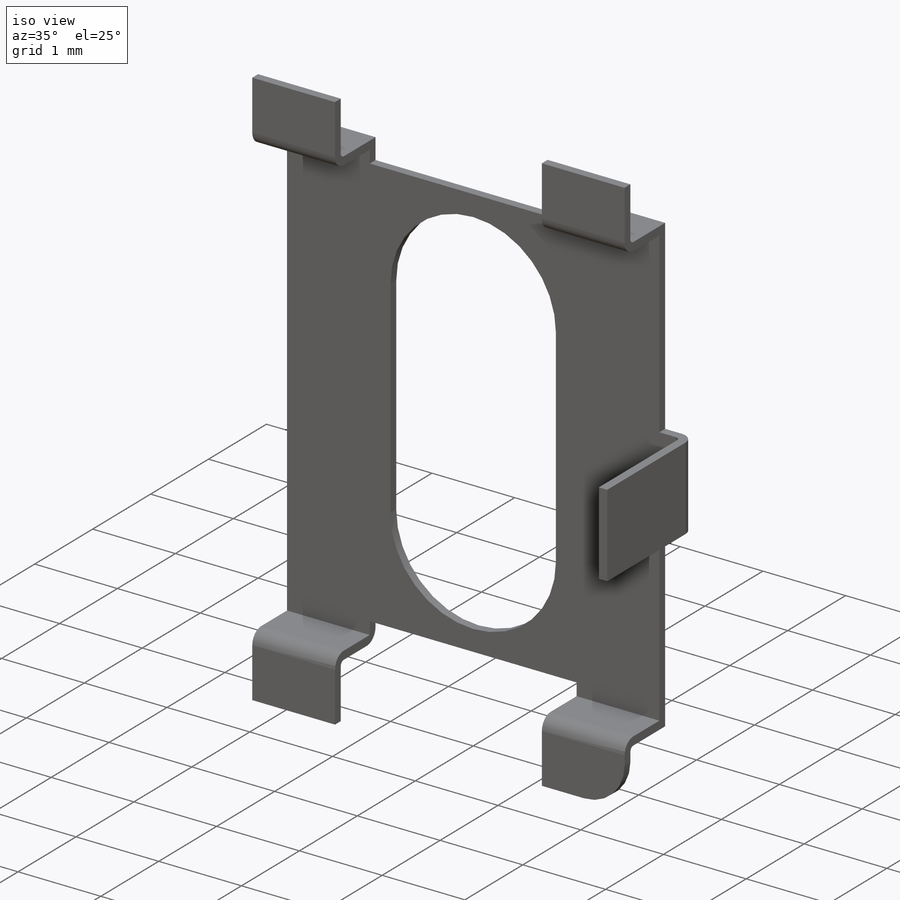
[diagram: iso view]
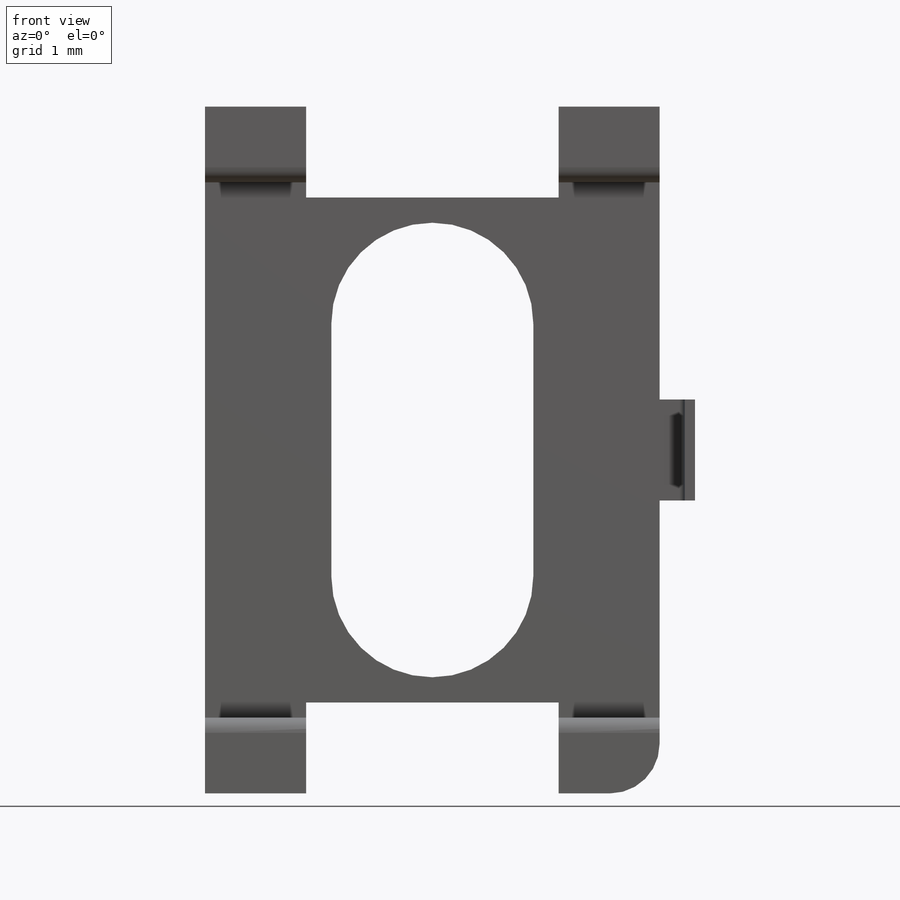
[diagram: front view]
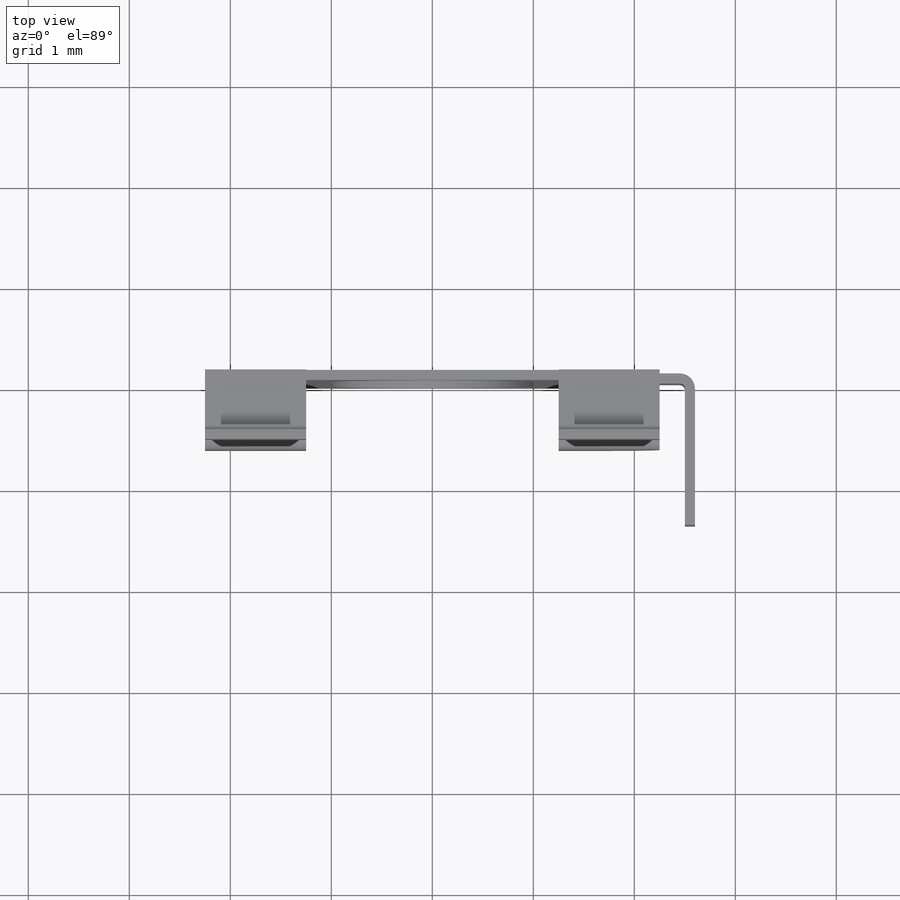
[diagram: top view]
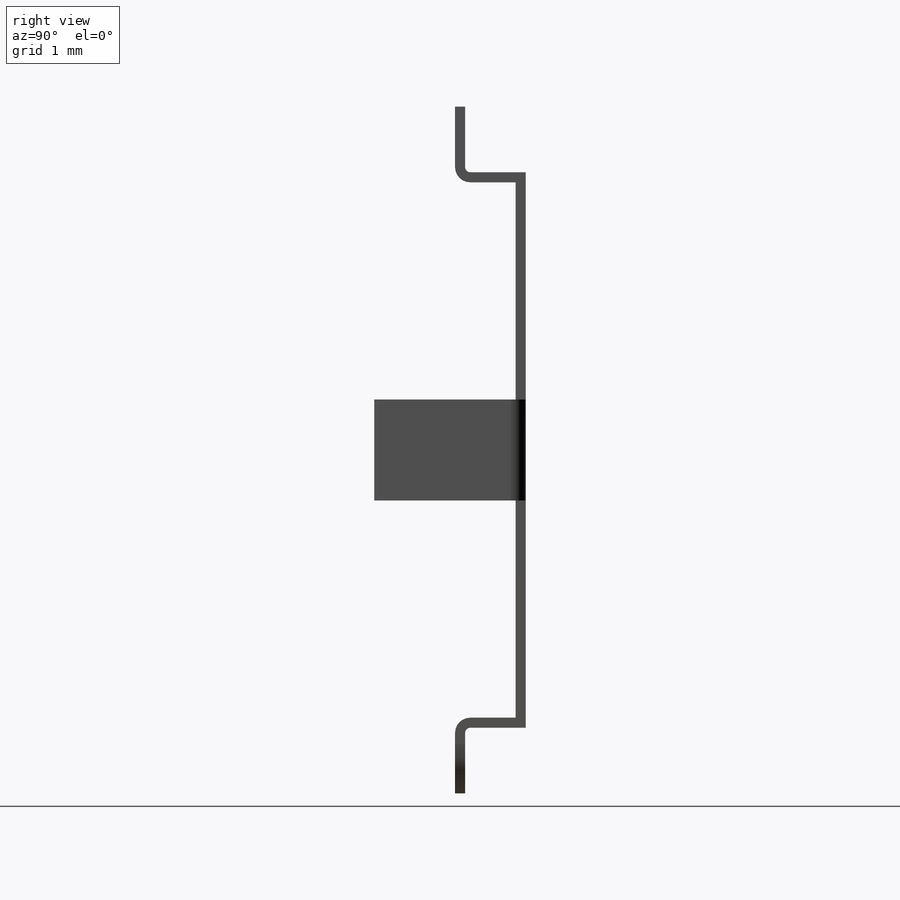
[diagram: right view]
SOLIDWORKS PART (.sldprt)
format: sldprt  version: not decoded by parser v0  size: 229,888 bytes
history: native  units: mm
features: plane x4, sketch x4, cut_extrude x2, fillet x2, material x1 (+12 scaffold rows collapsed)
feature tree (25):
  scaffold x12  (default folders/planes/origin — collapsed)
  material  "AISI 316 Stainless Steel Sheet (SS)"
  plane  "Plane1"
  sketch  "Sketch1"  dims[D1=2.25mm D2=2.25mm D3=0.0deg D4=0.0deg D5=0.1mm D6=0.0mm D7=0.0mm]
  plane  "Plane2"
  sketch  "Sketch2"
  cut_extrude  "Extrude1"  Depth=4mm
  plane  "Plane3"
  sketch  "S2D0010"
  cut_extrude  "Extrude2"  Depth=0.17mm
  plane  "Plane4"
  sketch  "S2D0012"  dims[D1=0.5mm D2=0.5mm D3=0.0deg D4=0.0deg D5=0.1mm D6=0.0mm D7=0.0mm]
  fillet  "Fillet1"  Radius=0.15mm
  fillet  "Fillet2"  Radius=0.49mm
decode coverage: 6 of 8 modeling features carry decoded parameters
note: suppression state not decoded; provenance and decode notes live in map.json
